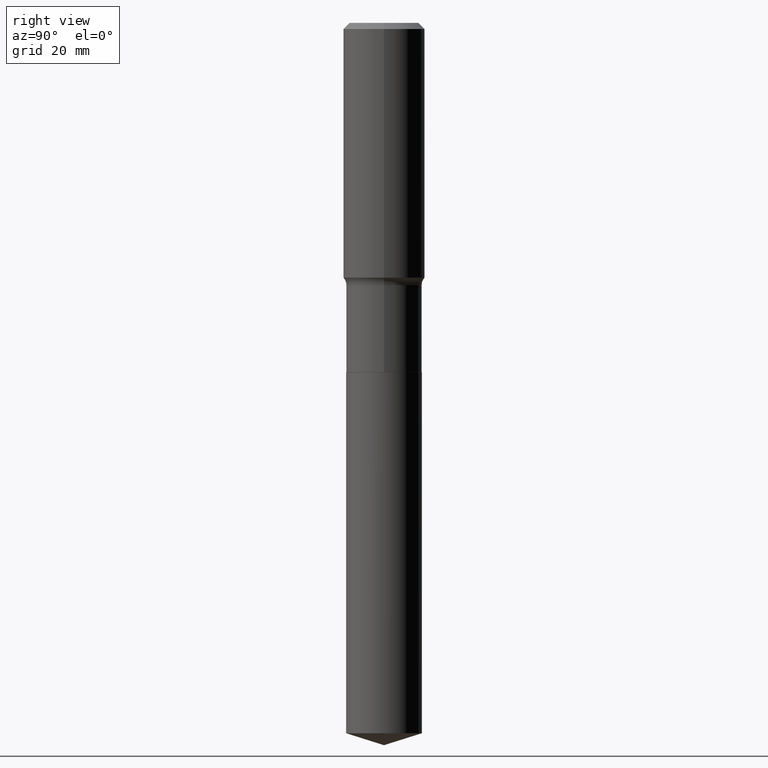
[diagram: clean part render]
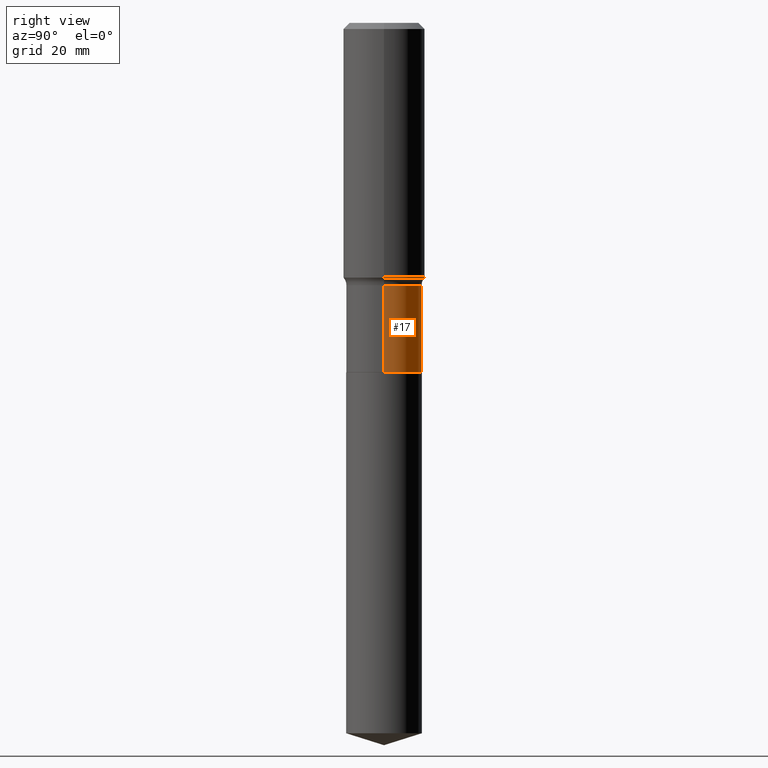
[diagram: same view with one face highlighted and labeled with its STEP entity id]
A machine part, right view. The second image highlights one B-rep face of the part: STEP entity #17.
In plain terms, the highlighted cylindrical surface (partial cylindrical patch) has radius 6.4999 mm, axis along (-0, 0, 1).
Its self-contained STEP definition (entity closure, byte-faithful):
#3 = EDGE_LOOP ( 'NONE', ( #200, #75, #39, #373 ) ) ;
#17 = ADVANCED_FACE ( 'NONE', ( #467 ), #162, .T. ) ;
#39 = ORIENTED_EDGE ( 'NONE', *, *, #354, .F. ) ;
#48 = EDGE_CURVE ( 'NONE', #145, #118, #473, .T. ) ;
#53 = EDGE_CURVE ( 'NONE', #145, #73, #161, .T. ) ;
#58 = AXIS2_PLACEMENT_3D ( 'NONE', #248, #398, #439 ) ;
#60 = CARTESIAN_POINT ( 'NONE',  ( -0.2559000000000000163, 1.818278860810096492E-15, -1.258755489596230312E-29 ) ) ;
#61 = CARTESIAN_POINT ( 'NONE',  ( -0.2559000000000000719, -5.400882529448933178E-15, -2.361699999999999910 ) ) ;
#73 = VERTEX_POINT ( 'NONE', #61 ) ;
#75 = ORIENTED_EDGE ( 'NONE', *, *, #169, .T. ) ;
#90 = DIRECTION ( 'NONE',  ( -2.445468806185136597E-29, 3.491481338843145583E-15, 1.000000000000000000 ) ) ;
#109 = DIRECTION ( 'NONE',  ( 1.000000000000000000, -6.982962677686266711E-15, 0.000000000000000000 ) ) ;
#118 = VERTEX_POINT ( 'NONE', #361 ) ;
#145 = VERTEX_POINT ( 'NONE', #317 ) ;
#161 = CIRCLE ( 'NONE', #58, 0.2559000000000000163 ) ;
#162 = CYLINDRICAL_SURFACE ( 'NONE', #435, 0.2559000000000000163 ) ;
#169 = EDGE_CURVE ( 'NONE', #73, #339, #480, .T. ) ;
#200 = ORIENTED_EDGE ( 'NONE', *, *, #53, .T. ) ;
#202 = CARTESIAN_POINT ( 'NONE',  ( 0.2559000000000000163, -1.786940149219915740E-15, 1.247813636926179898E-29 ) ) ;
#207 = DIRECTION ( 'NONE',  ( -2.445468806185136877E-29, 3.491481338843145188E-15, 1.000000000000000000 ) ) ;
#222 = CARTESIAN_POINT ( 'NONE',  ( -0.2558999999999999608, -5.400882529448933178E-15, -1.773599999999999843 ) ) ;
#248 = CARTESIAN_POINT ( 'NONE',  ( 5.775463679567436952E-29, -8.245831477945857334E-15, -2.361699999999999910 ) ) ;
#281 = DIRECTION ( 'NONE',  ( -2.445468806185136877E-29, 3.491481338843145188E-15, 1.000000000000000000 ) ) ;
#317 = CARTESIAN_POINT ( 'NONE',  ( 0.2559000000000000163, -1.003277162716577307E-14, -2.361699999999999910 ) ) ;
#329 = CIRCLE ( 'NONE', #429, 0.2558999999999999608 ) ;
#339 = VERTEX_POINT ( 'NONE', #222 ) ;
#344 = VECTOR ( 'NONE', #207, 39.37007874015748143 ) ;
#348 = DIRECTION ( 'NONE',  ( 1.000000000000000000, -6.982962677686266711E-15, 4.876176775795935232E-29 ) ) ;
#354 = EDGE_CURVE ( 'NONE', #118, #339, #329, .T. ) ;
#361 = CARTESIAN_POINT ( 'NONE',  ( 0.2558999999999999608, -7.979431451792117746E-15, -1.773599999999999843 ) ) ;
#364 = DIRECTION ( 'NONE',  ( -2.445468806185136597E-29, 3.491481338843145583E-15, 1.000000000000000000 ) ) ;
#373 = ORIENTED_EDGE ( 'NONE', *, *, #48, .F. ) ;
#377 = VECTOR ( 'NONE', #281, 39.37007874015748143 ) ;
#398 = DIRECTION ( 'NONE',  ( -2.445468806185136597E-29, 3.491481338843145583E-15, 1.000000000000000000 ) ) ;
#406 = CARTESIAN_POINT ( 'NONE',  ( 4.337283474649957727E-29, -6.192491302572202795E-15, -1.773599999999999843 ) ) ;
#427 = CARTESIAN_POINT ( 'NONE',  ( 0.000000000000000000, 0.000000000000000000, 0.000000000000000000 ) ) ;
#429 = AXIS2_PLACEMENT_3D ( 'NONE', #406, #364, #109 ) ;
#435 = AXIS2_PLACEMENT_3D ( 'NONE', #427, #90, #348 ) ;
#439 = DIRECTION ( 'NONE',  ( 1.000000000000000000, -6.982962677686269866E-15, 0.000000000000000000 ) ) ;
#467 = FACE_OUTER_BOUND ( 'NONE', #3, .T. ) ;
#473 = LINE ( 'NONE', #202, #377 ) ;
#480 = LINE ( 'NONE', #60, #344 ) ;